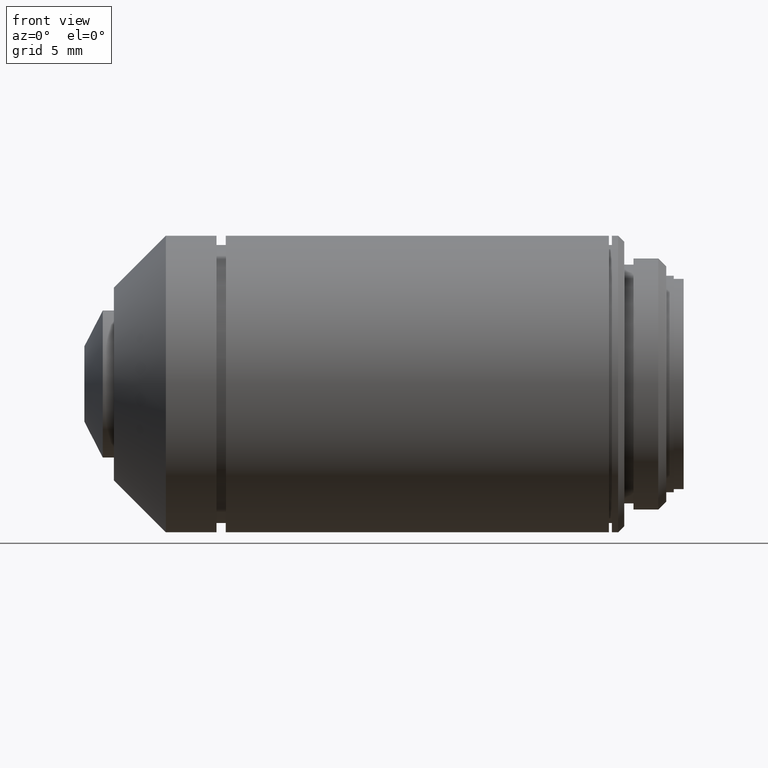
[diagram: clean part render]
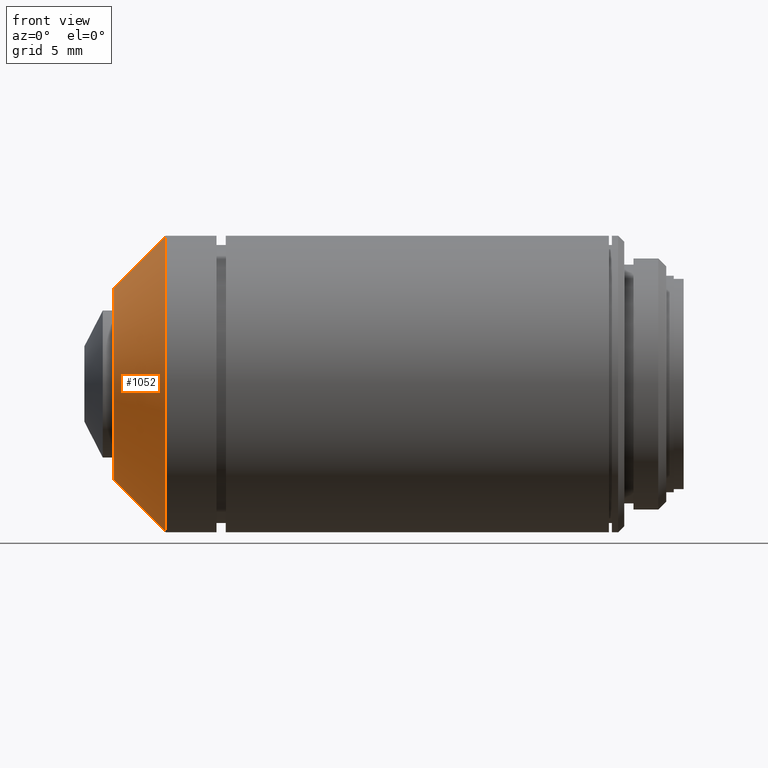
[diagram: same view with one face highlighted and labeled with its STEP entity id]
A machine part, front view. The second image highlights one B-rep face of the part: STEP entity #1052.
In plain terms, the highlighted conical surface has half-angle 45 deg.
Its self-contained STEP definition (entity closure, byte-faithful):
#2 = DIRECTION ( 'NONE',  ( 1.000000000000000000, 0.000000000000000000, 0.000000000000000000 ) ) ;
#20 = CARTESIAN_POINT ( 'NONE',  ( -41.89999999999999858, 0.000000000000000000, -12.00000000000000000 ) ) ;
#61 = LINE ( 'NONE', #841, #725 ) ;
#75 = CARTESIAN_POINT ( 'NONE',  ( -46.10000000000000142, 1.212400331155879899E-15, 7.799999999999999822 ) ) ;
#108 = VERTEX_POINT ( 'NONE', #20 ) ;
#109 = CIRCLE ( 'NONE', #341, 7.799999999999999822 ) ;
#120 = CARTESIAN_POINT ( 'NONE',  ( -41.89999999999999858, 0.000000000000000000, -12.00000000000000000 ) ) ;
#162 = CIRCLE ( 'NONE', #263, 12.00000000000000000 ) ;
#195 = CONICAL_SURFACE ( 'NONE', #228, 12.00000000000000000, 0.7853981633974476129 ) ;
#228 = AXIS2_PLACEMENT_3D ( 'NONE', #832, #583, #662 ) ;
#247 = ORIENTED_EDGE ( 'NONE', *, *, #924, .F. ) ;
#263 = AXIS2_PLACEMENT_3D ( 'NONE', #860, #2, #344 ) ;
#287 = EDGE_CURVE ( 'NONE', #843, #108, #558, .T. ) ;
#341 = AXIS2_PLACEMENT_3D ( 'NONE', #931, #771, #429 ) ;
#344 = DIRECTION ( 'NONE',  ( 0.000000000000000000, 0.000000000000000000, -1.000000000000000000 ) ) ;
#372 = DIRECTION ( 'NONE',  ( 0.7071067811865480168, 0.000000000000000000, -0.7071067811865470176 ) ) ;
#429 = DIRECTION ( 'NONE',  ( 0.000000000000000000, 0.000000000000000000, -1.000000000000000000 ) ) ;
#439 = VECTOR ( 'NONE', #372, 1000.000000000000000 ) ;
#448 = EDGE_LOOP ( 'NONE', ( #1074, #753, #1063, #247 ) ) ;
#497 = CARTESIAN_POINT ( 'NONE',  ( -46.10000000000000142, 0.000000000000000000, -7.799999999999999822 ) ) ;
#503 = FACE_OUTER_BOUND ( 'NONE', #448, .T. ) ;
#508 = VERTEX_POINT ( 'NONE', #1037 ) ;
#558 = LINE ( 'NONE', #120, #439 ) ;
#583 = DIRECTION ( 'NONE',  ( 1.000000000000000000, 0.000000000000000000, 0.000000000000000000 ) ) ;
#662 = DIRECTION ( 'NONE',  ( 0.000000000000000000, 0.000000000000000000, -1.000000000000000000 ) ) ;
#725 = VECTOR ( 'NONE', #897, 1000.000000000000000 ) ;
#753 = ORIENTED_EDGE ( 'NONE', *, *, #937, .T. ) ;
#771 = DIRECTION ( 'NONE',  ( 1.000000000000000000, 0.000000000000000000, 0.000000000000000000 ) ) ;
#814 = VERTEX_POINT ( 'NONE', #75 ) ;
#832 = CARTESIAN_POINT ( 'NONE',  ( -41.89999999999999858, 0.000000000000000000, 0.000000000000000000 ) ) ;
#841 = CARTESIAN_POINT ( 'NONE',  ( -41.89999999999999858, 1.469576158976821975E-15, 12.00000000000000000 ) ) ;
#843 = VERTEX_POINT ( 'NONE', #497 ) ;
#844 = EDGE_CURVE ( 'NONE', #814, #508, #61, .T. ) ;
#860 = CARTESIAN_POINT ( 'NONE',  ( -41.89999999999999858, 0.000000000000000000, 0.000000000000000000 ) ) ;
#897 = DIRECTION ( 'NONE',  ( 0.7071067811865480168, 8.659560562354929160E-17, 0.7071067811865470176 ) ) ;
#924 = EDGE_CURVE ( 'NONE', #508, #108, #162, .T. ) ;
#931 = CARTESIAN_POINT ( 'NONE',  ( -46.10000000000000142, 0.000000000000000000, 0.000000000000000000 ) ) ;
#937 = EDGE_CURVE ( 'NONE', #814, #843, #109, .T. ) ;
#1037 = CARTESIAN_POINT ( 'NONE',  ( -41.89999999999999858, 1.469576158976821975E-15, 12.00000000000000000 ) ) ;
#1052 = ADVANCED_FACE ( 'NONE', ( #503 ), #195, .T. ) ;
#1063 = ORIENTED_EDGE ( 'NONE', *, *, #287, .T. ) ;
#1074 = ORIENTED_EDGE ( 'NONE', *, *, #844, .F. ) ;